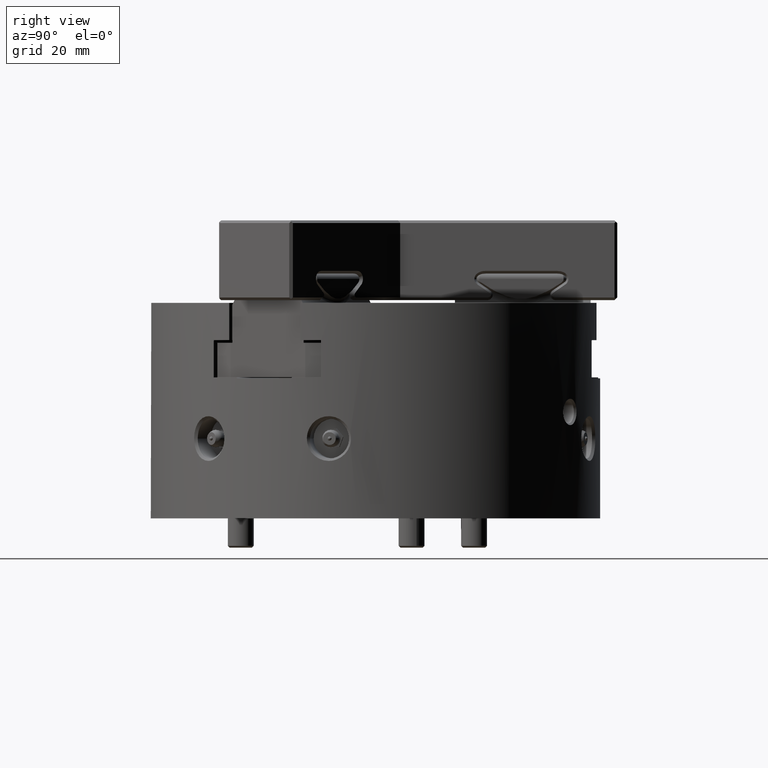
[diagram: clean part render]
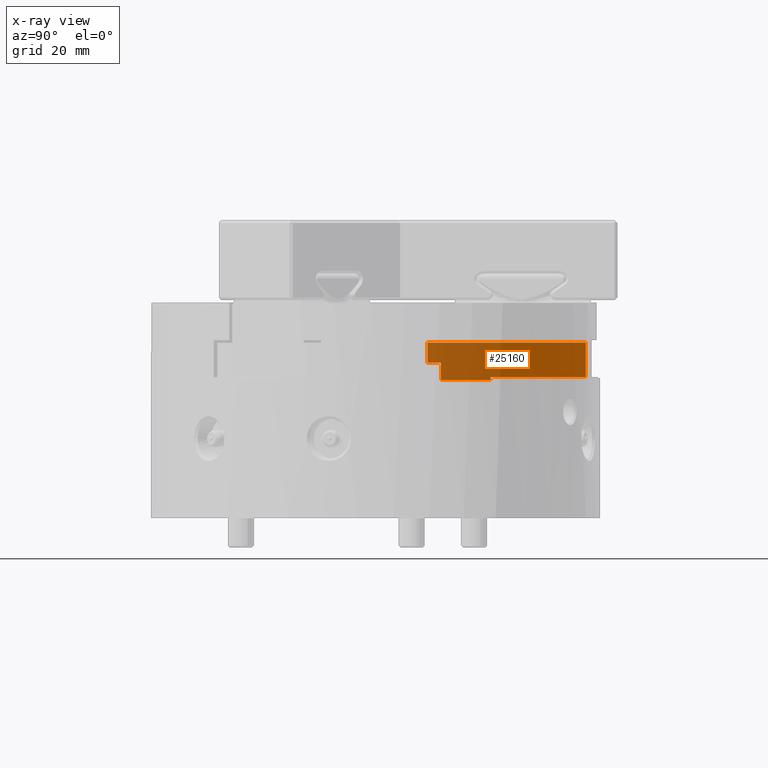
[diagram: x-ray — body ghosted, one internal face saturated and labeled with its STEP entity id]
A machine part, right view, then the same camera in x-ray: the body is ghosted and one INTERNAL B-rep face — a face not visible from any outside direction — is saturated and labeled: STEP entity #25160.
In plain terms, the highlighted planar face has unit normal (1, 0, 0).
Its self-contained STEP definition (entity closure, byte-faithful):
#1527=LINE('',#35505,#3561);
#1574=LINE('',#35683,#3608);
#2705=LINE('',#44257,#4739);
#2726=LINE('',#44329,#4760);
#2727=LINE('',#44331,#4761);
#2728=LINE('',#44333,#4762);
#2729=LINE('',#44335,#4763);
#2730=LINE('',#44336,#4764);
#3561=VECTOR('',#28580,1000.);
#3608=VECTOR('',#28693,1000.);
#4739=VECTOR('',#32390,1000.);
#4760=VECTOR('',#32433,1000.);
#4761=VECTOR('',#32434,1000.);
#4762=VECTOR('',#32435,1000.);
#4763=VECTOR('',#32436,1000.);
#4764=VECTOR('',#32437,1000.);
#9810=ORIENTED_EDGE('',*,*,#12821,.F.);
#9811=ORIENTED_EDGE('',*,*,#12898,.T.);
#9812=ORIENTED_EDGE('',*,*,#14980,.F.);
#9813=ORIENTED_EDGE('',*,*,#14981,.F.);
#9814=ORIENTED_EDGE('',*,*,#14982,.F.);
#9815=ORIENTED_EDGE('',*,*,#14983,.T.);
#9816=ORIENTED_EDGE('',*,*,#14950,.T.);
#9817=ORIENTED_EDGE('',*,*,#14984,.F.);
#12821=EDGE_CURVE('',#16410,#16411,#1527,.T.);
#12898=EDGE_CURVE('',#16410,#16476,#1574,.T.);
#14950=EDGE_CURVE('',#17864,#17863,#2705,.T.);
#14980=EDGE_CURVE('',#17884,#16476,#2726,.T.);
#14981=EDGE_CURVE('',#17885,#17884,#2727,.T.);
#14982=EDGE_CURVE('',#17886,#17885,#2728,.T.);
#14983=EDGE_CURVE('',#17886,#17864,#2729,.T.);
#14984=EDGE_CURVE('',#16411,#17863,#2730,.T.);
#16410=VERTEX_POINT('',#35504);
#16411=VERTEX_POINT('',#35506);
#16476=VERTEX_POINT('',#35682);
#17863=VERTEX_POINT('',#44256);
#17864=VERTEX_POINT('',#44258);
#17884=VERTEX_POINT('',#44330);
#17885=VERTEX_POINT('',#44332);
#17886=VERTEX_POINT('',#44334);
#20670=EDGE_LOOP('',(#9810,#9811,#9812,#9813,#9814,#9815,#9816,#9817));
#22600=FACE_BOUND('',#20670,.T.);
#23973=PLANE('',#27302);
#25160=ADVANCED_FACE('',(#22600),#23973,.F.);
#27302=AXIS2_PLACEMENT_3D('',#44328,#32431,#32432);
#28580=DIRECTION('',(-1.19784912878175E-16,1.,0.));
#28693=DIRECTION('',(0.,0.,-1.));
#32390=DIRECTION('',(0.,1.,0.));
#32431=DIRECTION('',(1.,1.19784912878175E-16,0.));
#32432=DIRECTION('',(-1.21430643318377E-16,1.,0.));
#32433=DIRECTION('',(0.,1.,0.));
#32434=DIRECTION('',(0.,0.,-1.));
#32435=DIRECTION('',(-1.19784912878175E-16,1.,0.));
#32436=DIRECTION('',(0.,0.,1.));
#32437=DIRECTION('',(0.,0.,1.));
#35504=CARTESIAN_POINT('',(-23.,43.2666153055679,-28.));
#35505=CARTESIAN_POINT('',(-23.,52.3273817064933,-28.));
#35506=CARTESIAN_POINT('',(-23.,79.0053271979617,-28.));
#35682=CARTESIAN_POINT('',(-23.,43.2666153055679,-29.));
#35683=CARTESIAN_POINT('',(-23.,43.2666153055679,0.));
#44256=CARTESIAN_POINT('',(-23.,79.0053271979617,-15.));
#44257=CARTESIAN_POINT('',(-23.,-71.0226182935067,-15.));
#44258=CARTESIAN_POINT('',(-23.,19.5773817064933,-15.));
#44328=CARTESIAN_POINT('',(-23.,19.5773817064933,-67.));
#44329=CARTESIAN_POINT('',(-23.,-71.0226182935067,-29.));
#44330=CARTESIAN_POINT('',(-23.,24.5773817064933,-29.));
#44331=CARTESIAN_POINT('',(-23.,24.5773817064933,-22.5));
#44332=CARTESIAN_POINT('',(-23.,24.5773817064933,-22.5));
#44333=CARTESIAN_POINT('',(-23.,19.5773817064933,-22.5));
#44334=CARTESIAN_POINT('',(-23.,19.5773817064933,-22.5));
#44335=CARTESIAN_POINT('',(-23.,19.5773817064933,-67.));
#44336=CARTESIAN_POINT('',(-23.,79.0053271979617,-67.));